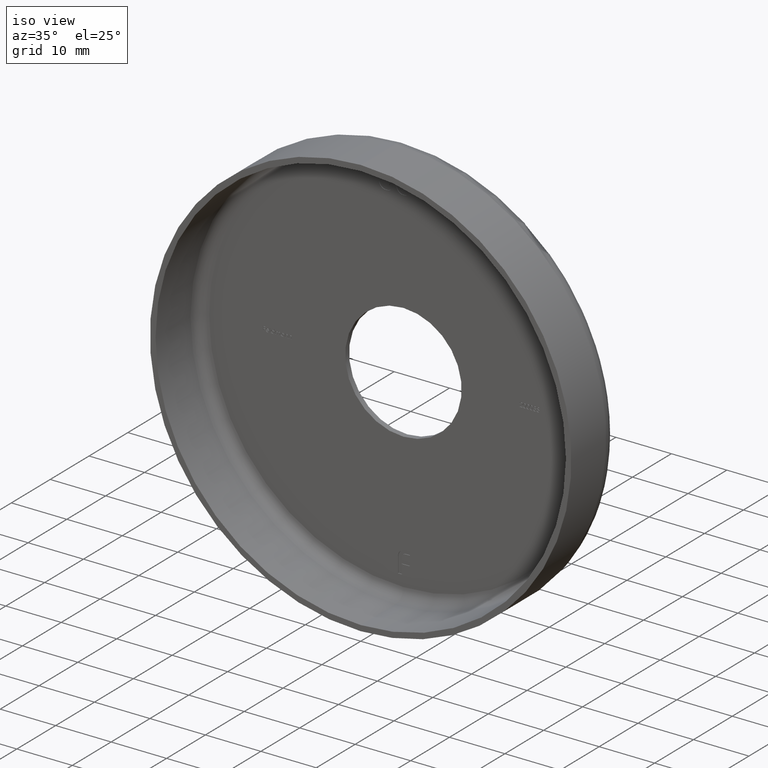
[diagram: clean part render]
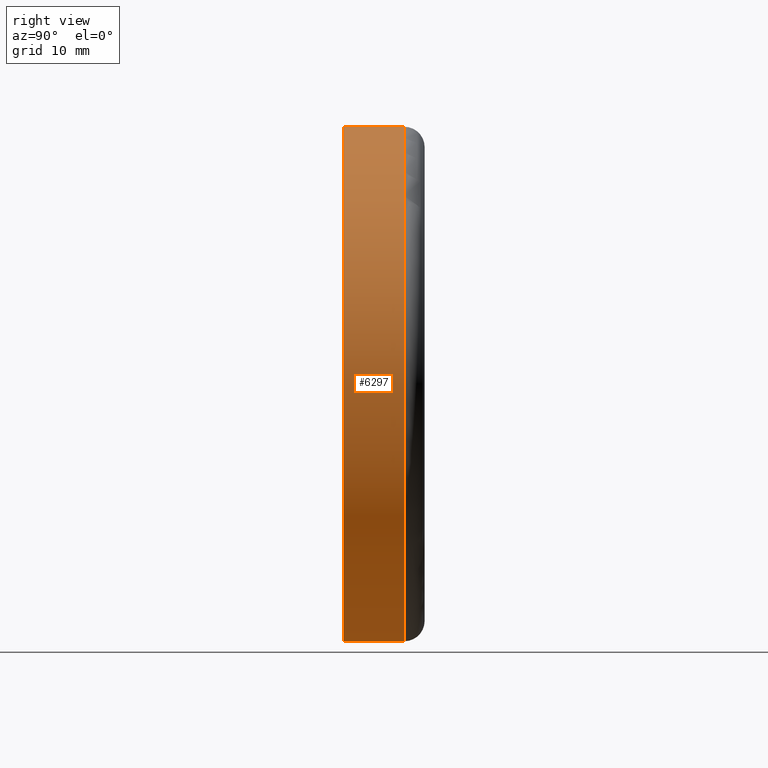
[diagram: tour spotlight — one face highlighted and labeled with its STEP entity id]
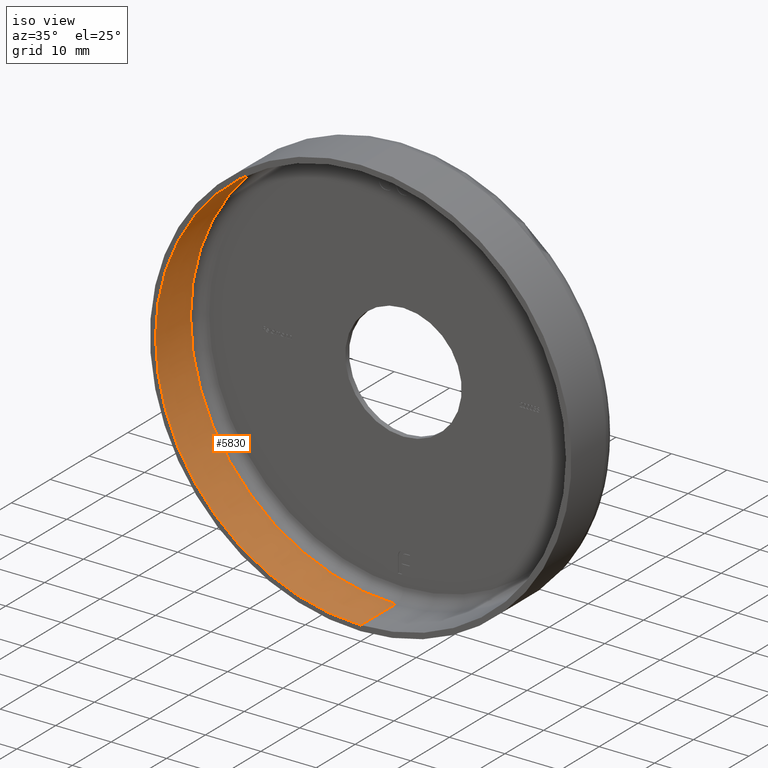
[diagram: tour spotlight — one face highlighted and labeled with its STEP entity id]
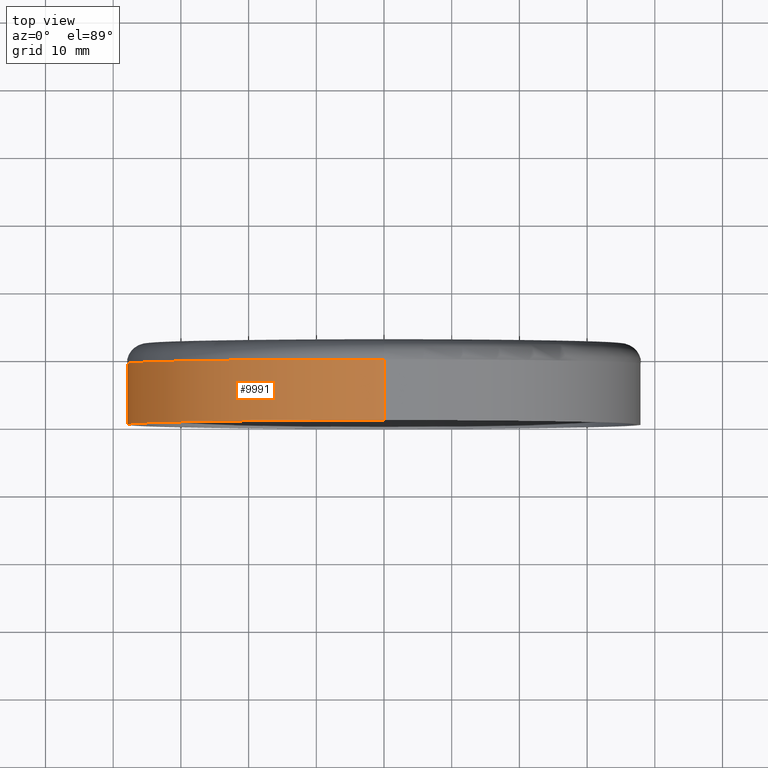
[diagram: tour spotlight — one face highlighted and labeled with its STEP entity id]
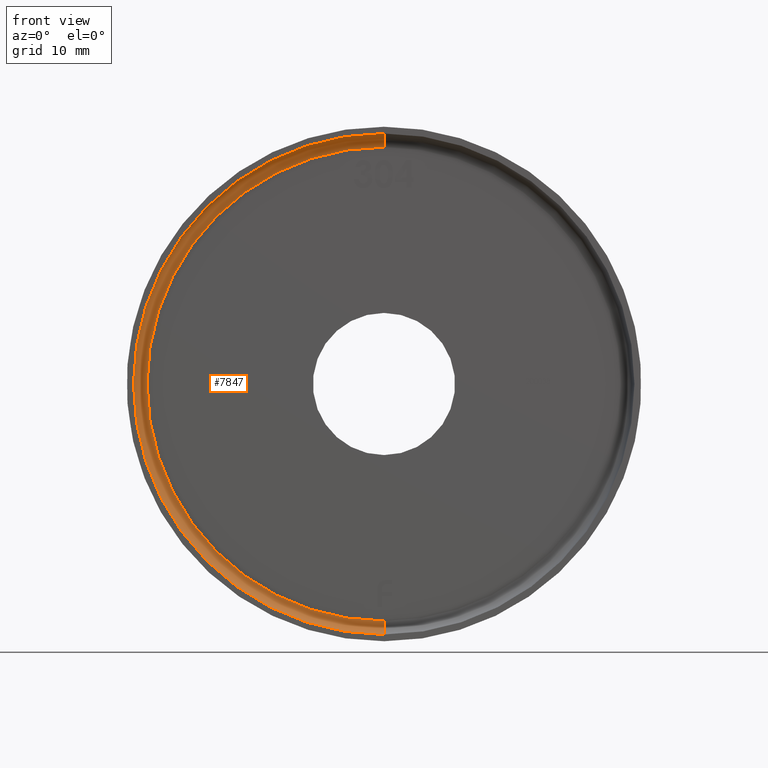
[diagram: tour spotlight — one face highlighted and labeled with its STEP entity id]
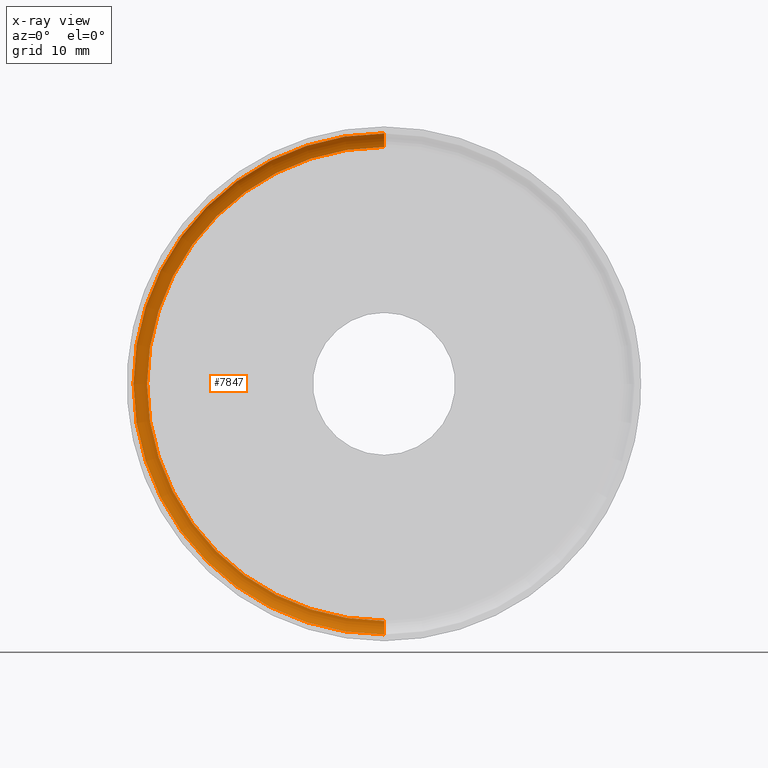
[diagram: x-ray of the same camera — body ghosted, this tour face saturated]
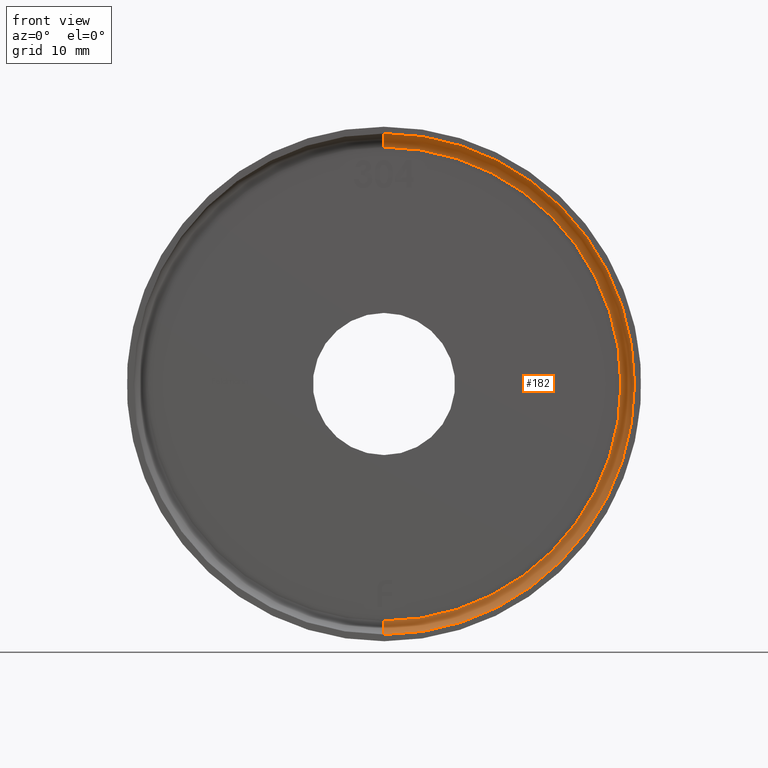
[diagram: tour spotlight — one face highlighted and labeled with its STEP entity id]
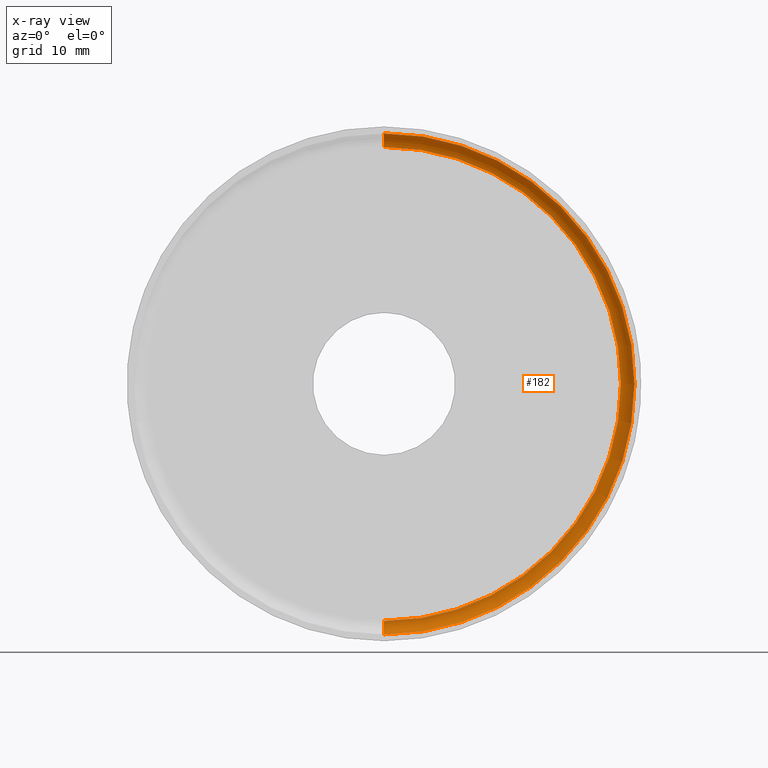
[diagram: x-ray of the same camera — body ghosted, this tour face saturated]
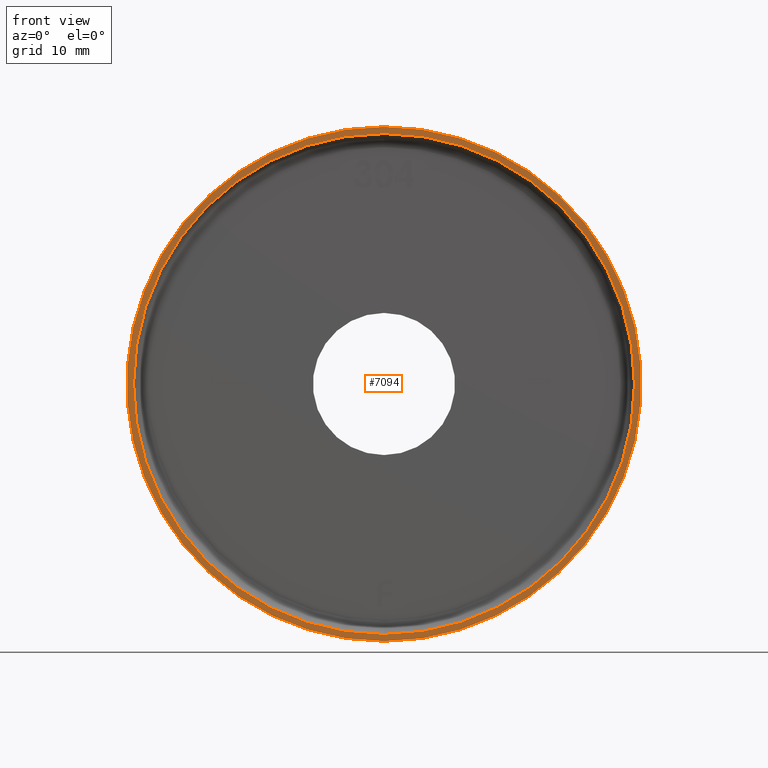
[diagram: tour spotlight — one face highlighted and labeled with its STEP entity id]
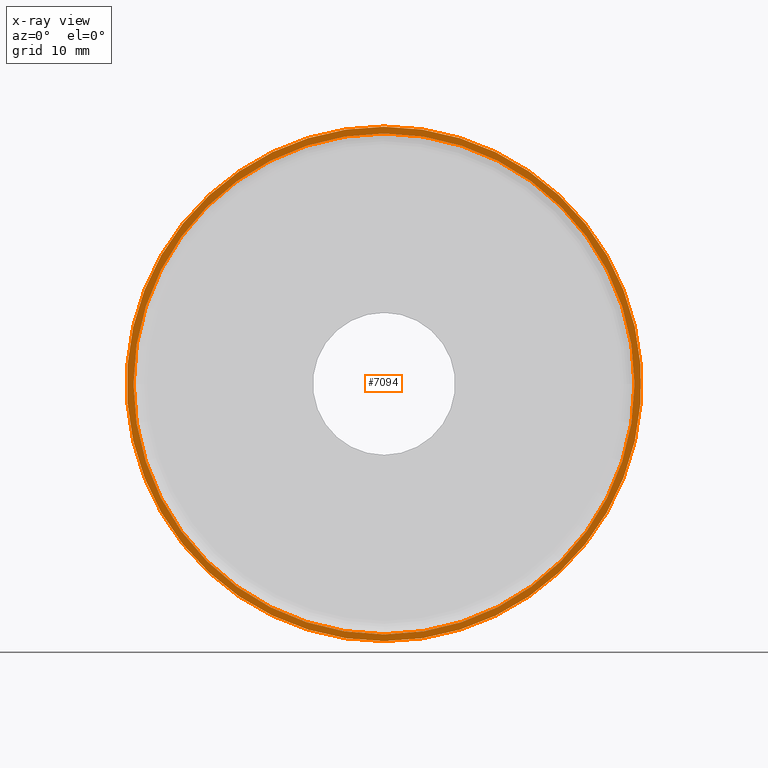
[diagram: x-ray of the same camera — body ghosted, this tour face saturated]
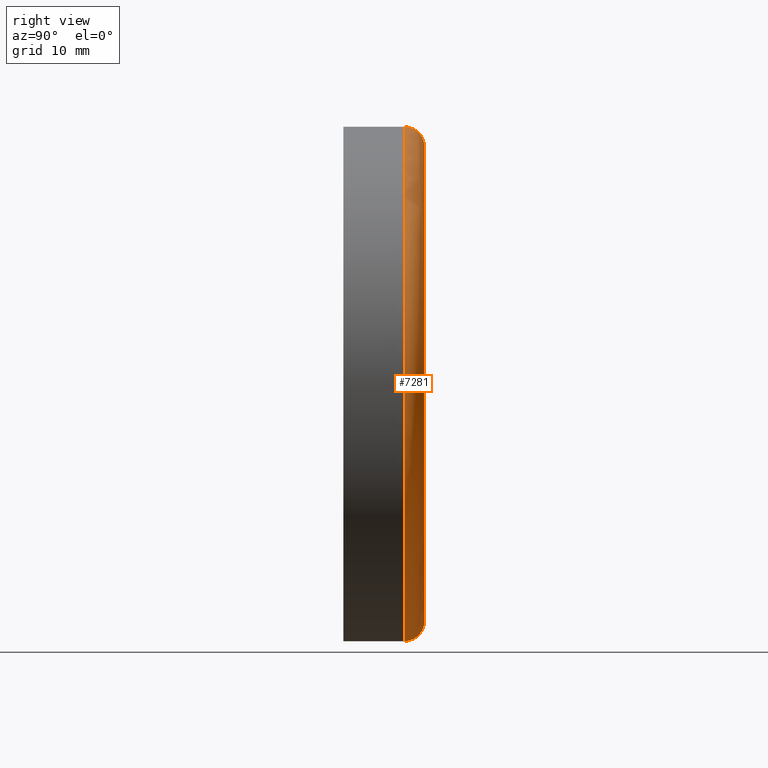
[diagram: tour spotlight — one face highlighted and labeled with its STEP entity id]
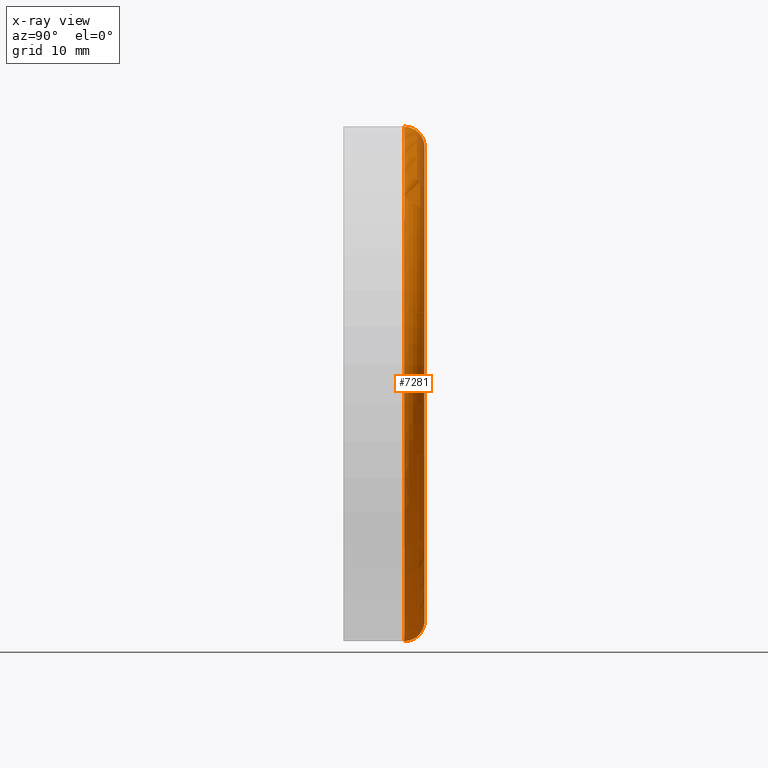
[diagram: x-ray of the same camera — body ghosted, this tour face saturated]
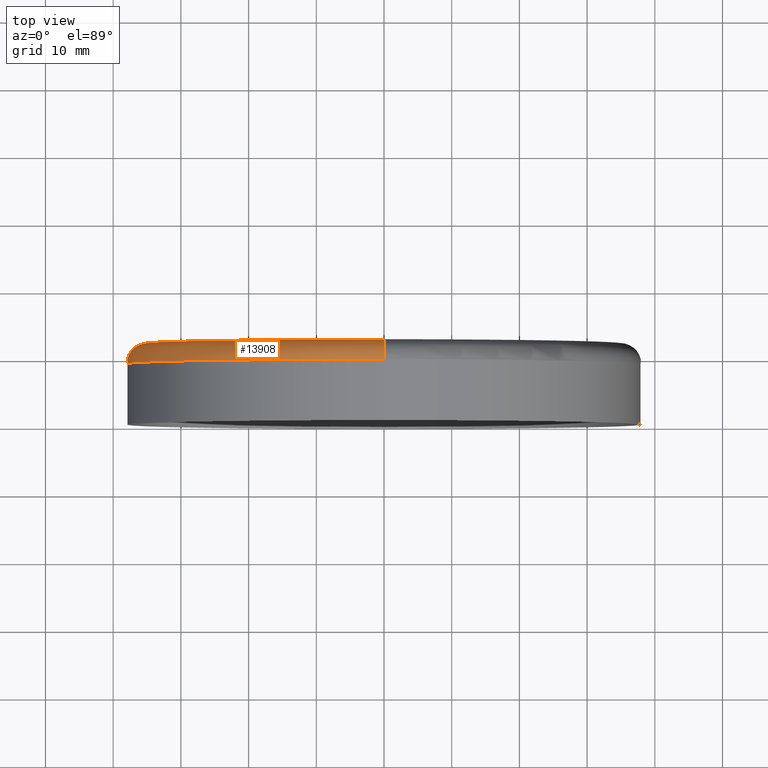
[diagram: tour spotlight — one face highlighted and labeled with its STEP entity id]
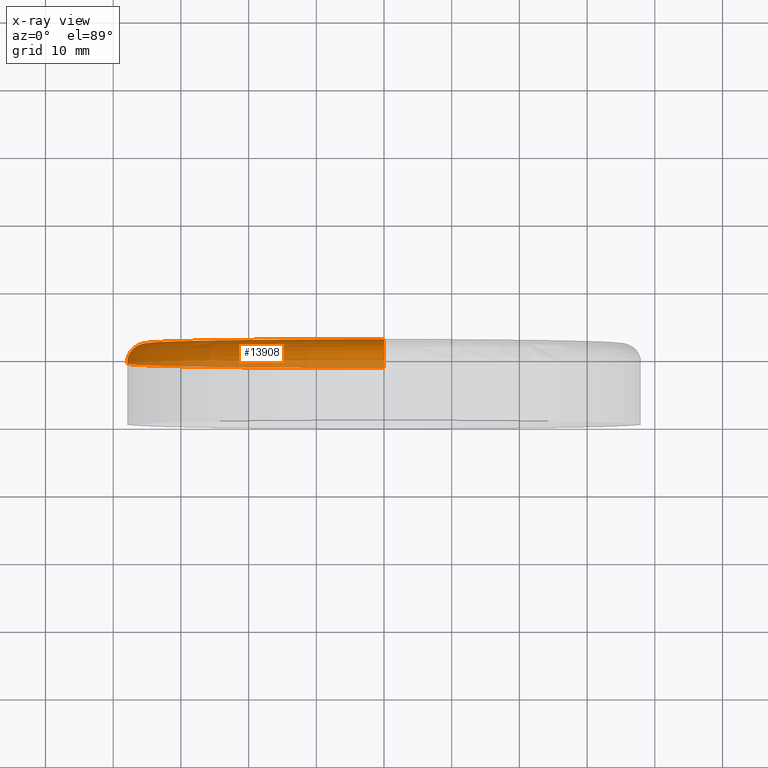
[diagram: x-ray of the same camera — body ghosted, this tour face saturated]
A machine part: a face-by-face anatomy tour. The part has 268 B-rep faces; the first image is the clean iso view, then the 8 largest visible faces are spotlighted one at a time (largest first), each with its STEP entity span.

Face 1 — right view, entity #6297. In plain terms, the highlighted cylindrical surface (partial cylindrical patch) has radius 38 mm, axis along (-0, -1, -0).
Definition (entity closure, byte-faithful):
#128 = DIRECTION ( 'NONE',  ( 0.000000000000000000, 0.000000000000000000, -1.000000000000000000 ) ) ;
#277 = ORIENTED_EDGE ( 'NONE', *, *, #10178, .F. ) ;
#443 = DIRECTION ( 'NONE',  ( -0.000000000000000000, -1.000000000000000000, -0.000000000000000000 ) ) ;
#1590 = CARTESIAN_POINT ( 'NONE',  ( 0.000000000000000000, 0.000000000000000000, 0.000000000000000000 ) ) ;
#1886 = DIRECTION ( 'NONE',  ( -0.000000000000000000, -1.000000000000000000, -0.000000000000000000 ) ) ;
#2029 = CARTESIAN_POINT ( 'NONE',  ( 4.653657836759942730E-15, 9.000000000000001776, 38.00000000000000711 ) ) ;
#2464 = LINE ( 'NONE', #6841, #16129 ) ;
#2630 = EDGE_CURVE ( 'NONE', #14866, #3016, #5165, .T. ) ;
#3016 = VERTEX_POINT ( 'NONE', #4100 ) ;
#3680 = CARTESIAN_POINT ( 'NONE',  ( 0.000000000000000000, 9.000000000000001776, 0.000000000000000000 ) ) ;
#3847 = AXIS2_PLACEMENT_3D ( 'NONE', #10403, #9324, #9213 ) ;
#4100 = CARTESIAN_POINT ( 'NONE',  ( 4.653657836759942730E-15, 0.000000000000000000, 38.00000000000000711 ) ) ;
#4247 = FACE_OUTER_BOUND ( 'NONE', #14447, .T. ) ;
#4837 = CYLINDRICAL_SURFACE ( 'NONE', #8541, 38.00000000000000711 ) ;
#5165 = LINE ( 'NONE', #6691, #11249 ) ;
#6239 = DIRECTION ( 'NONE',  ( 0.000000000000000000, 0.000000000000000000, -1.000000000000000000 ) ) ;
#6297 = ADVANCED_FACE ( 'NONE', ( #4247 ), #4837, .T. ) ;
#6519 = EDGE_CURVE ( 'NONE', #9759, #14866, #7164, .T. ) ;
#6691 = CARTESIAN_POINT ( 'NONE',  ( 4.653657836759942730E-15, 0.000000000000000000, 38.00000000000000711 ) ) ;
#6841 = CARTESIAN_POINT ( 'NONE',  ( 0.000000000000000000, 0.000000000000000000, -38.00000000000000711 ) ) ;
#7164 = CIRCLE ( 'NONE', #10746, 38.00000000000000711 ) ;
#7978 = ORIENTED_EDGE ( 'NONE', *, *, #8605, .F. ) ;
#8541 = AXIS2_PLACEMENT_3D ( 'NONE', #1590, #15044, #128 ) ;
#8605 = EDGE_CURVE ( 'NONE', #9759, #13337, #2464, .T. ) ;
#9213 = DIRECTION ( 'NONE',  ( 0.000000000000000000, 0.000000000000000000, -1.000000000000000000 ) ) ;
#9324 = DIRECTION ( 'NONE',  ( -0.000000000000000000, -1.000000000000000000, -0.000000000000000000 ) ) ;
#9759 = VERTEX_POINT ( 'NONE', #12619 ) ;
#10178 = EDGE_CURVE ( 'NONE', #13337, #3016, #14525, .T. ) ;
#10403 = CARTESIAN_POINT ( 'NONE',  ( 0.000000000000000000, 0.000000000000000000, 0.000000000000000000 ) ) ;
#10746 = AXIS2_PLACEMENT_3D ( 'NONE', #3680, #12449, #6239 ) ;
#11249 = VECTOR ( 'NONE', #443, 1000.000000000000000 ) ;
#12449 = DIRECTION ( 'NONE',  ( -0.000000000000000000, -1.000000000000000000, -0.000000000000000000 ) ) ;
#12619 = CARTESIAN_POINT ( 'NONE',  ( 0.000000000000000000, 9.000000000000001776, -38.00000000000000711 ) ) ;
#13337 = VERTEX_POINT ( 'NONE', #15101 ) ;
#13401 = ORIENTED_EDGE ( 'NONE', *, *, #6519, .T. ) ;
#14447 = EDGE_LOOP ( 'NONE', ( #13401, #14597, #277, #7978 ) ) ;
#14525 = CIRCLE ( 'NONE', #3847, 38.00000000000000711 ) ;
#14597 = ORIENTED_EDGE ( 'NONE', *, *, #2630, .T. ) ;
#14866 = VERTEX_POINT ( 'NONE', #2029 ) ;
#15044 = DIRECTION ( 'NONE',  ( -0.000000000000000000, -1.000000000000000000, -0.000000000000000000 ) ) ;
#15101 = CARTESIAN_POINT ( 'NONE',  ( 0.000000000000000000, 0.000000000000000000, -38.00000000000000711 ) ) ;
#16129 = VECTOR ( 'NONE', #1886, 1000.000000000000000 ) ;

Face 2 — iso view, entity #5830. In plain terms, the highlighted cylindrical surface (partial cylindrical patch) has radius 37 mm, axis along (-0, -1, -0).
Definition (entity closure, byte-faithful):
#83 = LINE ( 'NONE', #14768, #3002 ) ;
#488 = CARTESIAN_POINT ( 'NONE',  ( 0.000000000000000000, 0.000000000000000000, 0.000000000000000000 ) ) ;
#607 = DIRECTION ( 'NONE',  ( 0.000000000000000000, 0.000000000000000000, -1.000000000000000000 ) ) ;
#822 = DIRECTION ( 'NONE',  ( 0.000000000000000000, 0.000000000000000000, -1.000000000000000000 ) ) ;
#962 = ORIENTED_EDGE ( 'NONE', *, *, #7046, .T. ) ;
#3002 = VECTOR ( 'NONE', #16034, 1000.000000000000000 ) ;
#3099 = FACE_OUTER_BOUND ( 'NONE', #10188, .T. ) ;
#3131 = CARTESIAN_POINT ( 'NONE',  ( 4.531193156845207581E-15, 9.000000000000001776, 37.00000000000000711 ) ) ;
#3209 = AXIS2_PLACEMENT_3D ( 'NONE', #488, #14049, #607 ) ;
#3468 = ORIENTED_EDGE ( 'NONE', *, *, #7085, .F. ) ;
#3676 = VERTEX_POINT ( 'NONE', #3131 ) ;
#4027 = LINE ( 'NONE', #4903, #9708 ) ;
#4513 = CARTESIAN_POINT ( 'NONE',  ( 0.000000000000000000, -1.224646799147353207E-16, -37.00000000000000711 ) ) ;
#4903 = CARTESIAN_POINT ( 'NONE',  ( 0.000000000000000000, 0.000000000000000000, -37.00000000000000711 ) ) ;
#5753 = ORIENTED_EDGE ( 'NONE', *, *, #8053, .F. ) ;
#5830 = ADVANCED_FACE ( 'NONE', ( #3099 ), #11280, .F. ) ;
#7046 = EDGE_CURVE ( 'NONE', #11769, #10043, #12626, .T. ) ;
#7085 = EDGE_CURVE ( 'NONE', #3676, #10741, #14379, .T. ) ;
#7123 = DIRECTION ( 'NONE',  ( -0.000000000000000000, -1.000000000000000000, -0.000000000000000000 ) ) ;
#7370 = DIRECTION ( 'NONE',  ( -0.000000000000000000, -1.000000000000000000, -0.000000000000000000 ) ) ;
#8053 = EDGE_CURVE ( 'NONE', #10741, #10043, #4027, .T. ) ;
#9708 = VECTOR ( 'NONE', #7370, 1000.000000000000000 ) ;
#9812 = AXIS2_PLACEMENT_3D ( 'NONE', #15909, #7123, #10791 ) ;
#10043 = VERTEX_POINT ( 'NONE', #4513 ) ;
#10188 = EDGE_LOOP ( 'NONE', ( #3468, #13457, #962, #5753 ) ) ;
#10741 = VERTEX_POINT ( 'NONE', #13579 ) ;
#10791 = DIRECTION ( 'NONE',  ( 0.000000000000000000, 0.000000000000000000, -1.000000000000000000 ) ) ;
#11280 = CYLINDRICAL_SURFACE ( 'NONE', #3209, 37.00000000000000711 ) ;
#11769 = VERTEX_POINT ( 'NONE', #12155 ) ;
#12094 = CARTESIAN_POINT ( 'NONE',  ( 0.000000000000000000, 9.000000000000001776, 0.000000000000000000 ) ) ;
#12155 = CARTESIAN_POINT ( 'NONE',  ( 4.531193156845207581E-15, -1.224646799147353207E-16, 37.00000000000000711 ) ) ;
#12626 = CIRCLE ( 'NONE', #9812, 37.00000000000000711 ) ;
#13457 = ORIENTED_EDGE ( 'NONE', *, *, #14978, .T. ) ;
#13579 = CARTESIAN_POINT ( 'NONE',  ( 0.000000000000000000, 9.000000000000001776, -37.00000000000000711 ) ) ;
#14049 = DIRECTION ( 'NONE',  ( -0.000000000000000000, -1.000000000000000000, -0.000000000000000000 ) ) ;
#14379 = CIRCLE ( 'NONE', #14592, 37.00000000000000711 ) ;
#14592 = AXIS2_PLACEMENT_3D ( 'NONE', #12094, #15853, #822 ) ;
#14768 = CARTESIAN_POINT ( 'NONE',  ( 4.531193156845207581E-15, 0.000000000000000000, 37.00000000000000711 ) ) ;
#14978 = EDGE_CURVE ( 'NONE', #3676, #11769, #83, .T. ) ;
#15853 = DIRECTION ( 'NONE',  ( -0.000000000000000000, -1.000000000000000000, -0.000000000000000000 ) ) ;
#15909 = CARTESIAN_POINT ( 'NONE',  ( 0.000000000000000000, -1.224646799147353207E-16, 0.000000000000000000 ) ) ;
#16034 = DIRECTION ( 'NONE',  ( -0.000000000000000000, -1.000000000000000000, -0.000000000000000000 ) ) ;

Face 3 — top view, entity #9991. In plain terms, the highlighted cylindrical surface (partial cylindrical patch) has radius 38 mm, axis along (-0, -1, -0).
Definition (entity closure, byte-faithful):
#443 = DIRECTION ( 'NONE',  ( -0.000000000000000000, -1.000000000000000000, -0.000000000000000000 ) ) ;
#611 = CARTESIAN_POINT ( 'NONE',  ( 0.000000000000000000, 0.000000000000000000, 0.000000000000000000 ) ) ;
#1411 = EDGE_CURVE ( 'NONE', #14866, #9759, #15535, .T. ) ;
#1886 = DIRECTION ( 'NONE',  ( -0.000000000000000000, -1.000000000000000000, -0.000000000000000000 ) ) ;
#2029 = CARTESIAN_POINT ( 'NONE',  ( 4.653657836759942730E-15, 9.000000000000001776, 38.00000000000000711 ) ) ;
#2230 = CARTESIAN_POINT ( 'NONE',  ( 0.000000000000000000, 0.000000000000000000, 0.000000000000000000 ) ) ;
#2464 = LINE ( 'NONE', #6841, #16129 ) ;
#2630 = EDGE_CURVE ( 'NONE', #14866, #3016, #5165, .T. ) ;
#3016 = VERTEX_POINT ( 'NONE', #4100 ) ;
#3371 = EDGE_CURVE ( 'NONE', #3016, #13337, #14747, .T. ) ;
#3800 = CYLINDRICAL_SURFACE ( 'NONE', #7496, 38.00000000000000711 ) ;
#4053 = ORIENTED_EDGE ( 'NONE', *, *, #1411, .T. ) ;
#4100 = CARTESIAN_POINT ( 'NONE',  ( 4.653657836759942730E-15, 0.000000000000000000, 38.00000000000000711 ) ) ;
#5165 = LINE ( 'NONE', #6691, #11249 ) ;
#5612 = DIRECTION ( 'NONE',  ( -0.000000000000000000, -1.000000000000000000, -0.000000000000000000 ) ) ;
#6691 = CARTESIAN_POINT ( 'NONE',  ( 4.653657836759942730E-15, 0.000000000000000000, 38.00000000000000711 ) ) ;
#6841 = CARTESIAN_POINT ( 'NONE',  ( 0.000000000000000000, 0.000000000000000000, -38.00000000000000711 ) ) ;
#7032 = ORIENTED_EDGE ( 'NONE', *, *, #2630, .F. ) ;
#7241 = DIRECTION ( 'NONE',  ( 0.000000000000000000, 0.000000000000000000, -1.000000000000000000 ) ) ;
#7496 = AXIS2_PLACEMENT_3D ( 'NONE', #2230, #12201, #7241 ) ;
#7904 = ORIENTED_EDGE ( 'NONE', *, *, #8605, .T. ) ;
#8605 = EDGE_CURVE ( 'NONE', #9759, #13337, #2464, .T. ) ;
#8927 = ORIENTED_EDGE ( 'NONE', *, *, #3371, .F. ) ;
#8948 = AXIS2_PLACEMENT_3D ( 'NONE', #611, #11768, #9279 ) ;
#9279 = DIRECTION ( 'NONE',  ( 0.000000000000000000, 0.000000000000000000, -1.000000000000000000 ) ) ;
#9759 = VERTEX_POINT ( 'NONE', #12619 ) ;
#9991 = ADVANCED_FACE ( 'NONE', ( #10256 ), #3800, .T. ) ;
#10256 = FACE_OUTER_BOUND ( 'NONE', #13938, .T. ) ;
#11249 = VECTOR ( 'NONE', #443, 1000.000000000000000 ) ;
#11549 = AXIS2_PLACEMENT_3D ( 'NONE', #13068, #5612, #12910 ) ;
#11768 = DIRECTION ( 'NONE',  ( -0.000000000000000000, -1.000000000000000000, -0.000000000000000000 ) ) ;
#12201 = DIRECTION ( 'NONE',  ( -0.000000000000000000, -1.000000000000000000, -0.000000000000000000 ) ) ;
#12619 = CARTESIAN_POINT ( 'NONE',  ( 0.000000000000000000, 9.000000000000001776, -38.00000000000000711 ) ) ;
#12910 = DIRECTION ( 'NONE',  ( 0.000000000000000000, 0.000000000000000000, -1.000000000000000000 ) ) ;
#13068 = CARTESIAN_POINT ( 'NONE',  ( 0.000000000000000000, 9.000000000000001776, 0.000000000000000000 ) ) ;
#13337 = VERTEX_POINT ( 'NONE', #15101 ) ;
#13938 = EDGE_LOOP ( 'NONE', ( #7032, #4053, #7904, #8927 ) ) ;
#14747 = CIRCLE ( 'NONE', #8948, 38.00000000000000711 ) ;
#14866 = VERTEX_POINT ( 'NONE', #2029 ) ;
#15101 = CARTESIAN_POINT ( 'NONE',  ( 0.000000000000000000, 0.000000000000000000, -38.00000000000000711 ) ) ;
#15535 = CIRCLE ( 'NONE', #11549, 38.00000000000000711 ) ;
#16129 = VECTOR ( 'NONE', #1886, 1000.000000000000000 ) ;

Face 4 — front view, entity #7847. An x-ray twin of the same camera follows (body ghosted, this face saturated) — the face is partly hidden behind the body. In plain terms, the highlighted toroidal blend (fillet) surface has major radius 35 mm and minor (blend) radius 2 mm.
Definition (entity closure, byte-faithful):
#335 = TOROIDAL_SURFACE ( 'NONE', #928, 35.00000000000000000, 2.000000000000000000 ) ;
#440 = ORIENTED_EDGE ( 'NONE', *, *, #12135, .F. ) ;
#822 = DIRECTION ( 'NONE',  ( 0.000000000000000000, 0.000000000000000000, -1.000000000000000000 ) ) ;
#928 = AXIS2_PLACEMENT_3D ( 'NONE', #2420, #9952, #6181 ) ;
#983 = CARTESIAN_POINT ( 'NONE',  ( 0.000000000000000000, 9.000000000000001776, -35.00000000000000000 ) ) ;
#1165 = EDGE_LOOP ( 'NONE', ( #440, #12955, #2669, #4333 ) ) ;
#1238 = DIRECTION ( 'NONE',  ( 1.000000000000000000, 0.000000000000000000, -1.224646799147353207E-16 ) ) ;
#2420 = CARTESIAN_POINT ( 'NONE',  ( 0.000000000000000000, 9.000000000000001776, 0.000000000000000000 ) ) ;
#2669 = ORIENTED_EDGE ( 'NONE', *, *, #7085, .T. ) ;
#2829 = AXIS2_PLACEMENT_3D ( 'NONE', #13494, #1238, #12348 ) ;
#3131 = CARTESIAN_POINT ( 'NONE',  ( 4.531193156845207581E-15, 9.000000000000001776, 37.00000000000000711 ) ) ;
#3676 = VERTEX_POINT ( 'NONE', #3131 ) ;
#4333 = ORIENTED_EDGE ( 'NONE', *, *, #9955, .F. ) ;
#4571 = CARTESIAN_POINT ( 'NONE',  ( 0.000000000000000000, 11.00000000000000178, -35.00000000000000000 ) ) ;
#4583 = CIRCLE ( 'NONE', #4985, 2.000000000000001776 ) ;
#4674 = DIRECTION ( 'NONE',  ( 0.000000000000000000, 0.000000000000000000, -1.000000000000000000 ) ) ;
#4985 = AXIS2_PLACEMENT_3D ( 'NONE', #983, #13343, #5885 ) ;
#5885 = DIRECTION ( 'NONE',  ( 0.000000000000000000, 0.000000000000000000, 1.000000000000000000 ) ) ;
#6181 = DIRECTION ( 'NONE',  ( 0.000000000000000000, 0.000000000000000000, -1.000000000000000000 ) ) ;
#7085 = EDGE_CURVE ( 'NONE', #3676, #10741, #14379, .T. ) ;
#7599 = VERTEX_POINT ( 'NONE', #9036 ) ;
#7847 = ADVANCED_FACE ( 'NONE', ( #8522 ), #335, .F. ) ;
#8430 = CARTESIAN_POINT ( 'NONE',  ( 0.000000000000000000, 11.00000000000000178, 0.000000000000000000 ) ) ;
#8522 = FACE_OUTER_BOUND ( 'NONE', #1165, .T. ) ;
#9036 = CARTESIAN_POINT ( 'NONE',  ( 4.408728476930472433E-15, 11.00000000000000178, 35.00000000000000000 ) ) ;
#9055 = CIRCLE ( 'NONE', #11179, 35.00000000000000000 ) ;
#9234 = VERTEX_POINT ( 'NONE', #4571 ) ;
#9952 = DIRECTION ( 'NONE',  ( -0.000000000000000000, -1.000000000000000000, -0.000000000000000000 ) ) ;
#9955 = EDGE_CURVE ( 'NONE', #9234, #10741, #4583, .T. ) ;
#10741 = VERTEX_POINT ( 'NONE', #13579 ) ;
#11179 = AXIS2_PLACEMENT_3D ( 'NONE', #8430, #12138, #4674 ) ;
#11412 = CIRCLE ( 'NONE', #2829, 2.000000000000001776 ) ;
#12094 = CARTESIAN_POINT ( 'NONE',  ( 0.000000000000000000, 9.000000000000001776, 0.000000000000000000 ) ) ;
#12135 = EDGE_CURVE ( 'NONE', #7599, #9234, #9055, .T. ) ;
#12138 = DIRECTION ( 'NONE',  ( -0.000000000000000000, -1.000000000000000000, -0.000000000000000000 ) ) ;
#12160 = EDGE_CURVE ( 'NONE', #7599, #3676, #11412, .T. ) ;
#12348 = DIRECTION ( 'NONE',  ( -1.224646799147353454E-16, 0.000000000000000000, -1.000000000000000000 ) ) ;
#12955 = ORIENTED_EDGE ( 'NONE', *, *, #12160, .T. ) ;
#13343 = DIRECTION ( 'NONE',  ( -1.000000000000000000, 0.000000000000000000, 0.000000000000000000 ) ) ;
#13494 = CARTESIAN_POINT ( 'NONE',  ( 4.286263797015736496E-15, 9.000000000000001776, 35.00000000000000000 ) ) ;
#13579 = CARTESIAN_POINT ( 'NONE',  ( 0.000000000000000000, 9.000000000000001776, -37.00000000000000711 ) ) ;
#14379 = CIRCLE ( 'NONE', #14592, 37.00000000000000711 ) ;
#14592 = AXIS2_PLACEMENT_3D ( 'NONE', #12094, #15853, #822 ) ;
#15853 = DIRECTION ( 'NONE',  ( -0.000000000000000000, -1.000000000000000000, -0.000000000000000000 ) ) ;

Face 5 — front view, entity #182. An x-ray twin of the same camera follows (body ghosted, this face saturated) — the face is partly hidden behind the body. In plain terms, the highlighted toroidal blend (fillet) surface has major radius 35 mm and minor (blend) radius 2 mm.
Definition (entity closure, byte-faithful):
#182 = ADVANCED_FACE ( 'NONE', ( #9720 ), #12819, .F. ) ;
#620 = EDGE_CURVE ( 'NONE', #9234, #7599, #13590, .T. ) ;
#756 = DIRECTION ( 'NONE',  ( -0.000000000000000000, -1.000000000000000000, -0.000000000000000000 ) ) ;
#983 = CARTESIAN_POINT ( 'NONE',  ( 0.000000000000000000, 9.000000000000001776, -35.00000000000000000 ) ) ;
#1079 = EDGE_LOOP ( 'NONE', ( #15782, #7513, #10092, #14544 ) ) ;
#1238 = DIRECTION ( 'NONE',  ( 1.000000000000000000, 0.000000000000000000, -1.224646799147353207E-16 ) ) ;
#2829 = AXIS2_PLACEMENT_3D ( 'NONE', #13494, #1238, #12348 ) ;
#3131 = CARTESIAN_POINT ( 'NONE',  ( 4.531193156845207581E-15, 9.000000000000001776, 37.00000000000000711 ) ) ;
#3133 = DIRECTION ( 'NONE',  ( 0.000000000000000000, 0.000000000000000000, -1.000000000000000000 ) ) ;
#3676 = VERTEX_POINT ( 'NONE', #3131 ) ;
#4571 = CARTESIAN_POINT ( 'NONE',  ( 0.000000000000000000, 11.00000000000000178, -35.00000000000000000 ) ) ;
#4583 = CIRCLE ( 'NONE', #4985, 2.000000000000001776 ) ;
#4985 = AXIS2_PLACEMENT_3D ( 'NONE', #983, #13343, #5885 ) ;
#5885 = DIRECTION ( 'NONE',  ( 0.000000000000000000, 0.000000000000000000, 1.000000000000000000 ) ) ;
#6881 = DIRECTION ( 'NONE',  ( -0.000000000000000000, -1.000000000000000000, -0.000000000000000000 ) ) ;
#7055 = DIRECTION ( 'NONE',  ( 0.000000000000000000, 0.000000000000000000, -1.000000000000000000 ) ) ;
#7405 = DIRECTION ( 'NONE',  ( -0.000000000000000000, -1.000000000000000000, -0.000000000000000000 ) ) ;
#7513 = ORIENTED_EDGE ( 'NONE', *, *, #620, .F. ) ;
#7599 = VERTEX_POINT ( 'NONE', #9036 ) ;
#9036 = CARTESIAN_POINT ( 'NONE',  ( 4.408728476930472433E-15, 11.00000000000000178, 35.00000000000000000 ) ) ;
#9234 = VERTEX_POINT ( 'NONE', #4571 ) ;
#9520 = CARTESIAN_POINT ( 'NONE',  ( 0.000000000000000000, 9.000000000000001776, 0.000000000000000000 ) ) ;
#9720 = FACE_OUTER_BOUND ( 'NONE', #1079, .T. ) ;
#9817 = CARTESIAN_POINT ( 'NONE',  ( 0.000000000000000000, 11.00000000000000178, 0.000000000000000000 ) ) ;
#9955 = EDGE_CURVE ( 'NONE', #9234, #10741, #4583, .T. ) ;
#10092 = ORIENTED_EDGE ( 'NONE', *, *, #9955, .T. ) ;
#10741 = VERTEX_POINT ( 'NONE', #13579 ) ;
#11412 = CIRCLE ( 'NONE', #2829, 2.000000000000001776 ) ;
#12160 = EDGE_CURVE ( 'NONE', #7599, #3676, #11412, .T. ) ;
#12348 = DIRECTION ( 'NONE',  ( -1.224646799147353454E-16, 0.000000000000000000, -1.000000000000000000 ) ) ;
#12687 = AXIS2_PLACEMENT_3D ( 'NONE', #14512, #756, #7055 ) ;
#12752 = EDGE_CURVE ( 'NONE', #10741, #3676, #13546, .T. ) ;
#12819 = TOROIDAL_SURFACE ( 'NONE', #12687, 35.00000000000000000, 2.000000000000000000 ) ;
#13343 = DIRECTION ( 'NONE',  ( -1.000000000000000000, 0.000000000000000000, 0.000000000000000000 ) ) ;
#13473 = AXIS2_PLACEMENT_3D ( 'NONE', #9520, #6881, #3133 ) ;
#13494 = CARTESIAN_POINT ( 'NONE',  ( 4.286263797015736496E-15, 9.000000000000001776, 35.00000000000000000 ) ) ;
#13546 = CIRCLE ( 'NONE', #13473, 37.00000000000000711 ) ;
#13579 = CARTESIAN_POINT ( 'NONE',  ( 0.000000000000000000, 9.000000000000001776, -37.00000000000000711 ) ) ;
#13590 = CIRCLE ( 'NONE', #15193, 35.00000000000000000 ) ;
#14512 = CARTESIAN_POINT ( 'NONE',  ( 0.000000000000000000, 9.000000000000001776, 0.000000000000000000 ) ) ;
#14544 = ORIENTED_EDGE ( 'NONE', *, *, #12752, .T. ) ;
#15193 = AXIS2_PLACEMENT_3D ( 'NONE', #9817, #7405, #16076 ) ;
#15782 = ORIENTED_EDGE ( 'NONE', *, *, #12160, .F. ) ;
#16076 = DIRECTION ( 'NONE',  ( 0.000000000000000000, 0.000000000000000000, -1.000000000000000000 ) ) ;

Face 6 — front view, entity #7094. An x-ray twin of the same camera follows (body ghosted, this face saturated) — the face is partly hidden behind the body. In plain terms, the highlighted planar face has unit normal (0, -1, -0).
Definition (entity closure, byte-faithful):
#227 = ORIENTED_EDGE ( 'NONE', *, *, #10093, .F. ) ;
#537 = EDGE_LOOP ( 'NONE', ( #12165, #11783 ) ) ;
#611 = CARTESIAN_POINT ( 'NONE',  ( 0.000000000000000000, 0.000000000000000000, 0.000000000000000000 ) ) ;
#799 = EDGE_LOOP ( 'NONE', ( #227, #2980 ) ) ;
#2980 = ORIENTED_EDGE ( 'NONE', *, *, #7046, .F. ) ;
#3016 = VERTEX_POINT ( 'NONE', #4100 ) ;
#3371 = EDGE_CURVE ( 'NONE', #3016, #13337, #14747, .T. ) ;
#3847 = AXIS2_PLACEMENT_3D ( 'NONE', #10403, #9324, #9213 ) ;
#4100 = CARTESIAN_POINT ( 'NONE',  ( 4.653657836759942730E-15, 0.000000000000000000, 38.00000000000000711 ) ) ;
#4513 = CARTESIAN_POINT ( 'NONE',  ( 0.000000000000000000, -1.224646799147353207E-16, -37.00000000000000711 ) ) ;
#4560 = PLANE ( 'NONE',  #6458 ) ;
#6268 = AXIS2_PLACEMENT_3D ( 'NONE', #10181, #11433, #6471 ) ;
#6458 = AXIS2_PLACEMENT_3D ( 'NONE', #14480, #15803, #11935 ) ;
#6471 = DIRECTION ( 'NONE',  ( 0.000000000000000000, 0.000000000000000000, -1.000000000000000000 ) ) ;
#6935 = CIRCLE ( 'NONE', #6268, 37.00000000000000711 ) ;
#7046 = EDGE_CURVE ( 'NONE', #11769, #10043, #12626, .T. ) ;
#7094 = ADVANCED_FACE ( 'NONE', ( #13595, #11465 ), #4560, .T. ) ;
#7123 = DIRECTION ( 'NONE',  ( -0.000000000000000000, -1.000000000000000000, -0.000000000000000000 ) ) ;
#8948 = AXIS2_PLACEMENT_3D ( 'NONE', #611, #11768, #9279 ) ;
#9213 = DIRECTION ( 'NONE',  ( 0.000000000000000000, 0.000000000000000000, -1.000000000000000000 ) ) ;
#9279 = DIRECTION ( 'NONE',  ( 0.000000000000000000, 0.000000000000000000, -1.000000000000000000 ) ) ;
#9324 = DIRECTION ( 'NONE',  ( -0.000000000000000000, -1.000000000000000000, -0.000000000000000000 ) ) ;
#9812 = AXIS2_PLACEMENT_3D ( 'NONE', #15909, #7123, #10791 ) ;
#10043 = VERTEX_POINT ( 'NONE', #4513 ) ;
#10093 = EDGE_CURVE ( 'NONE', #10043, #11769, #6935, .T. ) ;
#10178 = EDGE_CURVE ( 'NONE', #13337, #3016, #14525, .T. ) ;
#10181 = CARTESIAN_POINT ( 'NONE',  ( 0.000000000000000000, -1.224646799147353207E-16, 0.000000000000000000 ) ) ;
#10403 = CARTESIAN_POINT ( 'NONE',  ( 0.000000000000000000, 0.000000000000000000, 0.000000000000000000 ) ) ;
#10791 = DIRECTION ( 'NONE',  ( 0.000000000000000000, 0.000000000000000000, -1.000000000000000000 ) ) ;
#11433 = DIRECTION ( 'NONE',  ( -0.000000000000000000, -1.000000000000000000, -0.000000000000000000 ) ) ;
#11465 = FACE_BOUND ( 'NONE', #799, .T. ) ;
#11768 = DIRECTION ( 'NONE',  ( -0.000000000000000000, -1.000000000000000000, -0.000000000000000000 ) ) ;
#11769 = VERTEX_POINT ( 'NONE', #12155 ) ;
#11783 = ORIENTED_EDGE ( 'NONE', *, *, #3371, .T. ) ;
#11935 = DIRECTION ( 'NONE',  ( 0.000000000000000000, 0.000000000000000000, -1.000000000000000000 ) ) ;
#12155 = CARTESIAN_POINT ( 'NONE',  ( 4.531193156845207581E-15, -1.224646799147353207E-16, 37.00000000000000711 ) ) ;
#12165 = ORIENTED_EDGE ( 'NONE', *, *, #10178, .T. ) ;
#12626 = CIRCLE ( 'NONE', #9812, 37.00000000000000711 ) ;
#13337 = VERTEX_POINT ( 'NONE', #15101 ) ;
#13595 = FACE_OUTER_BOUND ( 'NONE', #537, .T. ) ;
#14480 = CARTESIAN_POINT ( 'NONE',  ( 37.00000000000000711, -6.123233995736766036E-17, 0.000000000000000000 ) ) ;
#14525 = CIRCLE ( 'NONE', #3847, 38.00000000000000711 ) ;
#14747 = CIRCLE ( 'NONE', #8948, 38.00000000000000711 ) ;
#15101 = CARTESIAN_POINT ( 'NONE',  ( 0.000000000000000000, 0.000000000000000000, -38.00000000000000711 ) ) ;
#15803 = DIRECTION ( 'NONE',  ( 0.000000000000000000, -1.000000000000000000, -0.000000000000000000 ) ) ;
#15909 = CARTESIAN_POINT ( 'NONE',  ( 0.000000000000000000, -1.224646799147353207E-16, 0.000000000000000000 ) ) ;

Face 7 — right view, entity #7281. An x-ray twin of the same camera follows (body ghosted, this face saturated) — the face is partly hidden behind the body. In plain terms, the highlighted toroidal blend (fillet) surface has major radius 35 mm and minor (blend) radius 3 mm.
Definition (entity closure, byte-faithful):
#37 = DIRECTION ( 'NONE',  ( 0.000000000000000000, 0.000000000000000000, -1.000000000000000000 ) ) ;
#144 = CIRCLE ( 'NONE', #9512, 35.00000000000000000 ) ;
#2029 = CARTESIAN_POINT ( 'NONE',  ( 4.653657836759942730E-15, 9.000000000000001776, 38.00000000000000711 ) ) ;
#2705 = DIRECTION ( 'NONE',  ( -1.000000000000000000, 0.000000000000000000, 0.000000000000000000 ) ) ;
#3422 = AXIS2_PLACEMENT_3D ( 'NONE', #7444, #11369, #12559 ) ;
#3680 = CARTESIAN_POINT ( 'NONE',  ( 0.000000000000000000, 9.000000000000001776, 0.000000000000000000 ) ) ;
#4012 = EDGE_CURVE ( 'NONE', #10170, #14866, #7519, .T. ) ;
#4201 = ORIENTED_EDGE ( 'NONE', *, *, #4012, .T. ) ;
#4452 = CARTESIAN_POINT ( 'NONE',  ( 4.286263797015736496E-15, 9.000000000000001776, 35.00000000000000000 ) ) ;
#5370 = DIRECTION ( 'NONE',  ( -1.224646799147351975E-16, 0.000000000000000000, -1.000000000000000000 ) ) ;
#5578 = ORIENTED_EDGE ( 'NONE', *, *, #7856, .T. ) ;
#5618 = TOROIDAL_SURFACE ( 'NONE', #3422, 35.00000000000000000, 3.000000000000000888 ) ;
#5772 = ORIENTED_EDGE ( 'NONE', *, *, #6519, .F. ) ;
#5806 = FACE_OUTER_BOUND ( 'NONE', #16154, .T. ) ;
#6069 = CARTESIAN_POINT ( 'NONE',  ( 0.000000000000000000, 12.00000000000000000, -35.00000000000000000 ) ) ;
#6072 = DIRECTION ( 'NONE',  ( -0.000000000000000000, -1.000000000000000000, -0.000000000000000000 ) ) ;
#6236 = CARTESIAN_POINT ( 'NONE',  ( 0.000000000000000000, 12.00000000000000000, 0.000000000000000000 ) ) ;
#6239 = DIRECTION ( 'NONE',  ( 0.000000000000000000, 0.000000000000000000, -1.000000000000000000 ) ) ;
#6519 = EDGE_CURVE ( 'NONE', #9759, #14866, #7164, .T. ) ;
#7164 = CIRCLE ( 'NONE', #10746, 38.00000000000000711 ) ;
#7281 = ADVANCED_FACE ( 'NONE', ( #5806 ), #5618, .T. ) ;
#7340 = EDGE_CURVE ( 'NONE', #16110, #9759, #10295, .T. ) ;
#7444 = CARTESIAN_POINT ( 'NONE',  ( 0.000000000000000000, 9.000000000000001776, 0.000000000000000000 ) ) ;
#7519 = CIRCLE ( 'NONE', #11141, 3.000000000000002665 ) ;
#7608 = CARTESIAN_POINT ( 'NONE',  ( 4.469960816887840007E-15, 12.00000000000000000, 35.00000000000000000 ) ) ;
#7856 = EDGE_CURVE ( 'NONE', #16110, #10170, #144, .T. ) ;
#8649 = AXIS2_PLACEMENT_3D ( 'NONE', #11431, #2705, #8805 ) ;
#8805 = DIRECTION ( 'NONE',  ( 0.000000000000000000, 0.000000000000000000, 1.000000000000000000 ) ) ;
#9512 = AXIS2_PLACEMENT_3D ( 'NONE', #6236, #6072, #37 ) ;
#9759 = VERTEX_POINT ( 'NONE', #12619 ) ;
#10170 = VERTEX_POINT ( 'NONE', #7608 ) ;
#10295 = CIRCLE ( 'NONE', #8649, 3.000000000000002665 ) ;
#10746 = AXIS2_PLACEMENT_3D ( 'NONE', #3680, #12449, #6239 ) ;
#11141 = AXIS2_PLACEMENT_3D ( 'NONE', #4452, #13169, #5370 ) ;
#11200 = ORIENTED_EDGE ( 'NONE', *, *, #7340, .F. ) ;
#11369 = DIRECTION ( 'NONE',  ( -0.000000000000000000, -1.000000000000000000, -0.000000000000000000 ) ) ;
#11431 = CARTESIAN_POINT ( 'NONE',  ( 0.000000000000000000, 9.000000000000001776, -35.00000000000000000 ) ) ;
#12449 = DIRECTION ( 'NONE',  ( -0.000000000000000000, -1.000000000000000000, -0.000000000000000000 ) ) ;
#12559 = DIRECTION ( 'NONE',  ( 0.000000000000000000, 0.000000000000000000, -1.000000000000000000 ) ) ;
#12619 = CARTESIAN_POINT ( 'NONE',  ( 0.000000000000000000, 9.000000000000001776, -38.00000000000000711 ) ) ;
#13169 = DIRECTION ( 'NONE',  ( 1.000000000000000000, 0.000000000000000000, -1.224646799147353207E-16 ) ) ;
#14866 = VERTEX_POINT ( 'NONE', #2029 ) ;
#16110 = VERTEX_POINT ( 'NONE', #6069 ) ;
#16154 = EDGE_LOOP ( 'NONE', ( #5578, #4201, #5772, #11200 ) ) ;

Face 8 — top view, entity #13908. An x-ray twin of the same camera follows (body ghosted, this face saturated) — the face is partly hidden behind the body. In plain terms, the highlighted toroidal blend (fillet) surface has major radius 35 mm and minor (blend) radius 3 mm.
Definition (entity closure, byte-faithful):
#27 = ORIENTED_EDGE ( 'NONE', *, *, #7340, .T. ) ;
#57 = DIRECTION ( 'NONE',  ( 0.000000000000000000, 0.000000000000000000, -1.000000000000000000 ) ) ;
#682 = FACE_OUTER_BOUND ( 'NONE', #8293, .T. ) ;
#1360 = CARTESIAN_POINT ( 'NONE',  ( 0.000000000000000000, 9.000000000000001776, 0.000000000000000000 ) ) ;
#1411 = EDGE_CURVE ( 'NONE', #14866, #9759, #15535, .T. ) ;
#2029 = CARTESIAN_POINT ( 'NONE',  ( 4.653657836759942730E-15, 9.000000000000001776, 38.00000000000000711 ) ) ;
#2645 = EDGE_CURVE ( 'NONE', #10170, #16110, #3067, .T. ) ;
#2705 = DIRECTION ( 'NONE',  ( -1.000000000000000000, 0.000000000000000000, 0.000000000000000000 ) ) ;
#3067 = CIRCLE ( 'NONE', #4958, 35.00000000000000000 ) ;
#3909 = DIRECTION ( 'NONE',  ( -0.000000000000000000, -1.000000000000000000, -0.000000000000000000 ) ) ;
#4012 = EDGE_CURVE ( 'NONE', #10170, #14866, #7519, .T. ) ;
#4209 = ORIENTED_EDGE ( 'NONE', *, *, #1411, .F. ) ;
#4452 = CARTESIAN_POINT ( 'NONE',  ( 4.286263797015736496E-15, 9.000000000000001776, 35.00000000000000000 ) ) ;
#4958 = AXIS2_PLACEMENT_3D ( 'NONE', #7948, #11723, #11673 ) ;
#5017 = AXIS2_PLACEMENT_3D ( 'NONE', #1360, #3909, #57 ) ;
#5370 = DIRECTION ( 'NONE',  ( -1.224646799147351975E-16, 0.000000000000000000, -1.000000000000000000 ) ) ;
#5612 = DIRECTION ( 'NONE',  ( -0.000000000000000000, -1.000000000000000000, -0.000000000000000000 ) ) ;
#6069 = CARTESIAN_POINT ( 'NONE',  ( 0.000000000000000000, 12.00000000000000000, -35.00000000000000000 ) ) ;
#7340 = EDGE_CURVE ( 'NONE', #16110, #9759, #10295, .T. ) ;
#7519 = CIRCLE ( 'NONE', #11141, 3.000000000000002665 ) ;
#7608 = CARTESIAN_POINT ( 'NONE',  ( 4.469960816887840007E-15, 12.00000000000000000, 35.00000000000000000 ) ) ;
#7948 = CARTESIAN_POINT ( 'NONE',  ( 0.000000000000000000, 12.00000000000000000, 0.000000000000000000 ) ) ;
#8293 = EDGE_LOOP ( 'NONE', ( #12018, #10525, #27, #4209 ) ) ;
#8649 = AXIS2_PLACEMENT_3D ( 'NONE', #11431, #2705, #8805 ) ;
#8805 = DIRECTION ( 'NONE',  ( 0.000000000000000000, 0.000000000000000000, 1.000000000000000000 ) ) ;
#9759 = VERTEX_POINT ( 'NONE', #12619 ) ;
#9843 = TOROIDAL_SURFACE ( 'NONE', #5017, 35.00000000000000000, 3.000000000000000888 ) ;
#10170 = VERTEX_POINT ( 'NONE', #7608 ) ;
#10295 = CIRCLE ( 'NONE', #8649, 3.000000000000002665 ) ;
#10525 = ORIENTED_EDGE ( 'NONE', *, *, #2645, .T. ) ;
#11141 = AXIS2_PLACEMENT_3D ( 'NONE', #4452, #13169, #5370 ) ;
#11431 = CARTESIAN_POINT ( 'NONE',  ( 0.000000000000000000, 9.000000000000001776, -35.00000000000000000 ) ) ;
#11549 = AXIS2_PLACEMENT_3D ( 'NONE', #13068, #5612, #12910 ) ;
#11673 = DIRECTION ( 'NONE',  ( 0.000000000000000000, 0.000000000000000000, -1.000000000000000000 ) ) ;
#11723 = DIRECTION ( 'NONE',  ( -0.000000000000000000, -1.000000000000000000, -0.000000000000000000 ) ) ;
#12018 = ORIENTED_EDGE ( 'NONE', *, *, #4012, .F. ) ;
#12619 = CARTESIAN_POINT ( 'NONE',  ( 0.000000000000000000, 9.000000000000001776, -38.00000000000000711 ) ) ;
#12910 = DIRECTION ( 'NONE',  ( 0.000000000000000000, 0.000000000000000000, -1.000000000000000000 ) ) ;
#13068 = CARTESIAN_POINT ( 'NONE',  ( 0.000000000000000000, 9.000000000000001776, 0.000000000000000000 ) ) ;
#13169 = DIRECTION ( 'NONE',  ( 1.000000000000000000, 0.000000000000000000, -1.224646799147353207E-16 ) ) ;
#13908 = ADVANCED_FACE ( 'NONE', ( #682 ), #9843, .T. ) ;
#14866 = VERTEX_POINT ( 'NONE', #2029 ) ;
#15535 = CIRCLE ( 'NONE', #11549, 38.00000000000000711 ) ;
#16110 = VERTEX_POINT ( 'NONE', #6069 ) ;